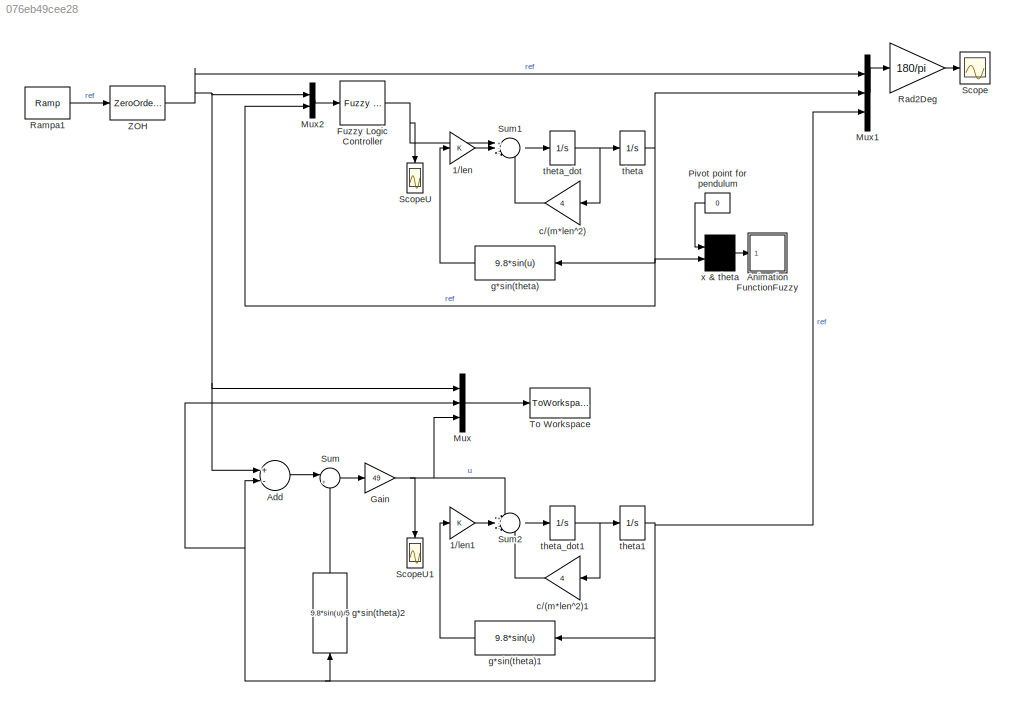
MODEL slx_076eb49cee28
KIND model
CONFIG AbsTol = 1e-6
CONFIG EnableMultiTasking = off
CONFIG FixedStep = auto
CONFIG MaxStep = .5
CONFIG MinStep = auto
CONFIG RelTol = 1e-3
CONFIG SampleTimeConstraint = Unconstrained
CONFIG Solver = ode45
CONFIG SolverName = ode45
CONFIG StartTime = 0
CONFIG StopTime = 190
BLOCK [Gain] 1//len
BLOCK [Gain] 1//len1
BLOCK [Sum] Add
  InputSameDT = off
  Inputs = +-
  OutDataTypeStr = Inherit: Inherit via internal rule
  Ports = [2, 1]
  SaturateOnIntegerOverflow = off
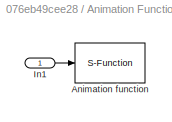
BLOCK [SubSystem] Animation FunctionFuzzy
  Ports = [1]
  RequestExecContextInheritance = off
BLOCK [S-Function] Animation FunctionFuzzy/Animation function
  DeleteFcn = if ~isempty(findobj('type','figure','name','simppend Animation'));close('simppend Animation'); end;
  EnableBusSupport = off
  FunctionName = pndanim1
  Parameters = ts
  Ports = [1]
  SFcnIsStateOwnerBlock = off
  SFunctionDeploymentMode = off
BLOCK [Inport] Animation FunctionFuzzy/In1
  IconDisplay = Port number
BLOCK [Reference] Fuzzy Logic Controller  REF=fuzblock/Fuzzy Logic   (lib defined in mdl_858b3b3e7478)
Controller
  Ports = [1, 1]
  SourceBlock = fuzblock/Fuzzy Logic \nController
  SourceProductBaseCode = FL
  SourceProductName = Fuzzy Logic Toolbox
  SourceType = Fuzzy Inference System
BLOCK [Gain] Gain
  Gain = 49
  OutDataTypeStr = Inherit: Inherit via internal rule
  ParamDataTypeStr = Inherit: Inherit via internal rule
  SaturateOnIntegerOverflow = off
BLOCK [Mux] Mux
  DisplayOption = bar
  Inputs = 3
  Ports = [3, 1]
BLOCK [Mux] Mux1
  DisplayOption = bar
  Inputs = 3
  Ports = [3, 1]
BLOCK [Mux] Mux2
  DisplayOption = bar
  Inputs = 2
  Ports = [2, 1]
BLOCK [Constant] Pivot point for pendulum
  Value = 0
BLOCK [Gain] Rad2Deg
  Gain = 180/pi
BLOCK [Reference] Rampa1  REF=simulink/Sources/Ramp
  Ports = [0, 1]
  SourceBlock = simulink/Sources/Ramp
  SourceProductBaseCode = SL
  SourceProductName = Simulink
  SourceType = Ramp
BLOCK [Scope] Scope
  Floating = off
  NumInputPorts = 1
  Ports = [1]
  ScopeSpecificationString = Simulink.scopes.TimeScopeBlockCfg('CurrentConfiguration', extmgr.ConfigurationSet(extmgr.Configuration('Core','General UI',true),extmgr.Configuration('Core','Source UI',true),extmgr.Configuration('Sources','WiredSimulink',true,'DataLoggingSaveFormat','StructureWithTime','DataLoggingLimitDataPoints',true,'DataLoggingDecimation','1','DataLoggingDecimateData',true),extmgr.Configuration('Visuals','Tim...<+1769ch>
BLOCK [Scope] ScopeU
  Floating = off
  NumInputPorts = 1
  Ports = [1]
  ScopeSpecificationString = Simulink.scopes.TimeScopeBlockCfg('CurrentConfiguration', extmgr.ConfigurationSet(extmgr.Configuration('Core','General UI',true),extmgr.Configuration('Core','Source UI',true),extmgr.Configuration('Sources','WiredSimulink',true,'DataLoggingVariableName','ScopeData4','DataLoggingSaveFormat','StructureWithTime','DataLoggingLimitDataPoints',true,'DataLoggingDecimation','1','DataLoggingDecimateData',tr...<+1723ch>
BLOCK [Scope] ScopeU1
  Floating = off
  NumInputPorts = 1
  Ports = [1]
  ScopeSpecificationString = Simulink.scopes.TimeScopeBlockCfg('CurrentConfiguration', extmgr.ConfigurationSet(extmgr.Configuration('Core','General UI',true),extmgr.Configuration('Core','Source UI',true),extmgr.Configuration('Sources','WiredSimulink',true,'DataLoggingVariableName','ScopeData2','DataLoggingSaveFormat','StructureWithTime','DataLoggingLimitDataPoints',true,'DataLoggingDecimation','1','DataLoggingDecimateData',tr...<+1702ch>
BLOCK [Sum] Sum
  IconShape = round
  InputSameDT = off
  Inputs = |++
  OutDataTypeStr = Inherit: Inherit via internal rule
  Ports = [2, 1]
  SaturateOnIntegerOverflow = off
BLOCK [Sum] Sum1
  IconShape = round
  Inputs = +--
  Ports = [3, 1]
BLOCK [Sum] Sum2
  IconShape = round
  Inputs = +--
  Ports = [3, 1]
BLOCK [ToWorkspace] To Workspace
  MaxDataPoints = inf
  Ports = [1]
  SampleTime = -1
  VariableName = PT
BLOCK [ZeroOrderHold] ZOH
  SampleTime = 10
BLOCK [Gain] c//(m*len^2)
  Gain = 4
BLOCK [Gain] c//(m*len^2)1
  Gain = 4
BLOCK [Fcn] g*sin(theta)
  Expr = 9.8*sin(u)
BLOCK [Fcn] g*sin(theta)1
  Expr = 9.8*sin(u)
BLOCK [Fcn] g*sin(theta)2
  Expr = 9.8*sin(u)/5
BLOCK [Integrator] theta
  InitialCondition = pi
  LowerSaturationLimit = -200
  Ports = [1, 1]
  UpperSaturationLimit = 200
BLOCK [Integrator] theta1
  InitialCondition = pi
  LowerSaturationLimit = -200
  Ports = [1, 1]
  UpperSaturationLimit = 200
BLOCK [Integrator] theta_dot
  InitialCondition = -.1
  LowerSaturationLimit = -200
  Ports = [1, 1]
  UpperSaturationLimit = 200
BLOCK [Integrator] theta_dot1
  InitialCondition = -.1
  LowerSaturationLimit = -200
  Ports = [1, 1]
  UpperSaturationLimit = 200
BLOCK [Mux] x & theta
  Inputs = 2
  Ports = [2, 1]
LINE 1//len1:1 -> Sum2:2
LINE 1//len:1 -> Sum1:2
LINE Add:1 -> Sum:1
LINE Animation FunctionFuzzy/In1:1 -> Animation FunctionFuzzy/Animation function:1
NET Fuzzy Logic Controller:1 -> ScopeU:1, Sum1:1
NET Gain:1 -> Mux:3, ScopeU1:1, Sum2:1
LINE Mux1:1 -> Rad2Deg:1
LINE Mux2:1 -> Fuzzy Logic Controller:1
LINE Mux:1 -> To Workspace:1
LINE Pivot point for pendulum:1 -> x & theta:1
LINE Rad2Deg:1 -> Scope:1
LINE Rampa1:1 -> ZOH:1
LINE Sum1:1 -> theta_dot:1
LINE Sum2:1 -> theta_dot1:1
LINE Sum:1 -> Gain:1
NET ZOH:1 -> Add:1, Mux1:1, Mux2:1, Mux:1
LINE c//(m*len^2)1:1 -> Sum2:3
LINE c//(m*len^2):1 -> Sum1:3
LINE g*sin(theta)1:1 -> 1//len1:1
LINE g*sin(theta)2:1 -> Sum:2
LINE g*sin(theta):1 -> 1//len:1
NET theta1:1 -> Add:2, Mux1:3, Mux:2, g*sin(theta)1:1, g*sin(theta)2:1
NET theta:1 -> Mux1:2, Mux2:2, g*sin(theta):1, x & theta:2
NET theta_dot1:1 -> c//(m*len^2)1:1, theta1:1
NET theta_dot:1 -> c//(m*len^2):1, theta:1
LINE x & theta:1 -> Animation FunctionFuzzy:1
note: NET lines group one-source signal fan-out (src -> all destinations, sorted); 1:1 wires keep LINE
